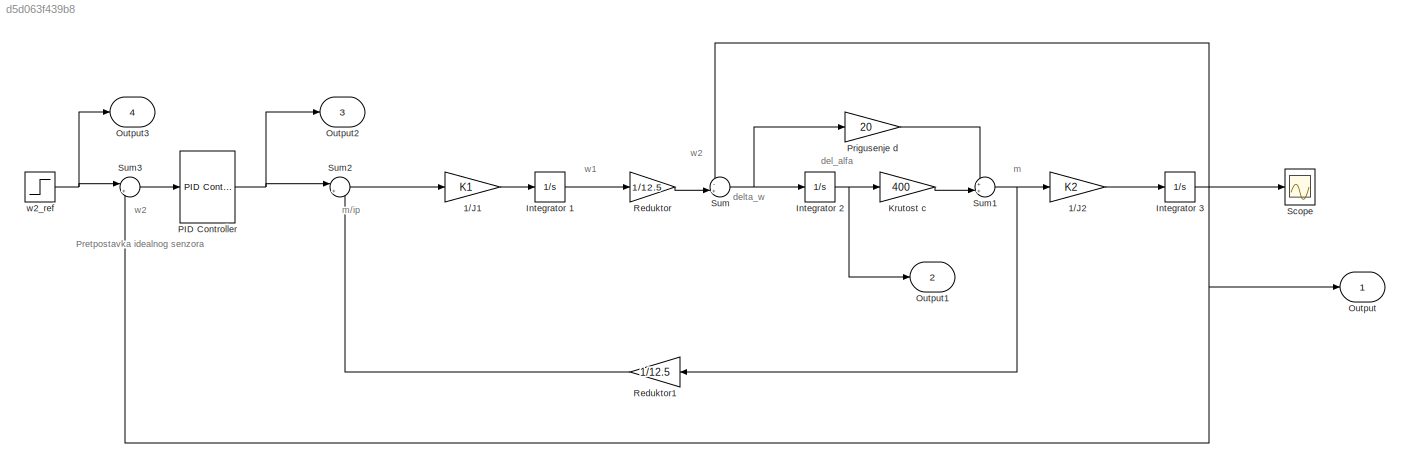
MODEL slx_d5d063f439b8
KIND model
CONFIG AbsTol = auto
CONFIG EnableMultiTasking = off
CONFIG FixedStep = auto
CONFIG MaxStep = auto
CONFIG MinStep = auto
CONFIG RelTol = 1e-3
CONFIG SampleTimeConstraint = Unconstrained
CONFIG SolverName = VariableStepAuto
CONFIG StartTime = 0.0
CONFIG StopTime = 250
WORKSPACE source: mxarray member
WORKSPACE J1 = 0.1
WORKSPACE K1 = 0.1
WORKSPACE K2 = 0.0015625
BLOCK [Gain] 1//J1
  Gain = K1
BLOCK [Gain] 1//J2
  Gain = K2
BLOCK [Integrator] Integrator 1
  Ports = [1, 1]
BLOCK [Integrator] Integrator 2
  LimitOutput = on
  LowerSaturationLimit = -0.2
  Ports = [1, 1]
  UpperSaturationLimit = 0.2
BLOCK [Integrator] Integrator 3
  Ports = [1, 1]
BLOCK [Gain] Krutost c
  Gain = 400
BLOCK [Outport] Output
  NameLocation = right
  SignalName = w2
BLOCK [Outport] Output1
  NameLocation = right
  Port = 2
  SignalName = delta_alfa
BLOCK [Outport] Output2
  NameLocation = right
  Port = 3
  SignalName = m1
BLOCK [Outport] Output3
  NameLocation = right
  Port = 4
  SignalName = w2,ref
BLOCK [Reference] PID Controller  REF=pid_lib/PID Controller
  Ports = [1, 1]
  SourceBlock = pid_lib/PID Controller
  SourceProductBaseCode = SL
  SourceType = PID 1dof
BLOCK [Gain] Prigusenje d
  Gain = 20
  NameLocation = top
BLOCK [Gain] Reduktor
  Gain = 1/12.5
BLOCK [Gain] Reduktor1
  Gain = 1/12.5
BLOCK [Scope] Scope
  Floating = off
  NumInputPorts = 1
  Ports = [1]
  ScopeSpecificationString = Simulink.scopes.TimeScopeBlockCfg('CurrentConfiguration', extmgr.ConfigurationSet(extmgr.Configuration('Core','General UI',true),extmgr.Configuration('Core','Source UI',true),extmgr.Configuration('Sources','WiredSimulink',true),extmgr.Configuration('Visuals','Time Domain',true,'SerializedDisplays',{struct('MinYLimReal','-0.62829','MaxYLimReal','5.65458','YLabelReal','','MinYLimMag','0.00000','MaxY...<+1379ch>
BLOCK [Sum] Sum
  Inputs = -+|
  NameLocation = top
  Ports = [2, 1]
BLOCK [Sum] Sum1
  Inputs = ++|
  NameLocation = top
  Ports = [2, 1]
BLOCK [Sum] Sum2
  Inputs = |+-
  NameLocation = top
  Ports = [2, 1]
BLOCK [Sum] Sum3
  Inputs = |+-
  NameLocation = top
  Ports = [2, 1]
BLOCK [Step] w2_ref
  After = 30
  SampleTime = 1
ANNOTATION (root): Pretpostavka idealnog senzora
ANNOTATION (root): del_alfa
ANNOTATION (root): delta_w
ANNOTATION (root): m
ANNOTATION (root): m/ip
ANNOTATION (root): w1
ANNOTATION (root): w2
LINE 1//J1:1 -> Integrator 1:1
LINE 1//J2:1 -> Integrator 3:1
LINE Integrator 1:1 -> Reduktor:1
NET Integrator 2:1 -> Krutost c:1, Output1:1
NET Integrator 3:1 -> Output:1, Scope:1, Sum3:2, Sum:1
LINE Krutost c:1 -> Sum1:2
NET PID Controller:1 -> Output2:1, Sum2:1
LINE Prigusenje d:1 -> Sum1:1
LINE Reduktor1:1 -> Sum2:2
LINE Reduktor:1 -> Sum:2
NET Sum1:1 -> 1//J2:1, Reduktor1:1
LINE Sum2:1 -> 1//J1:1
LINE Sum3:1 -> PID Controller:1
NET Sum:1 -> Integrator 2:1, Prigusenje d:1
NET w2_ref:1 -> Output3:1, Sum3:1
note: NET lines group one-source signal fan-out (src -> all destinations, sorted); 1:1 wires keep LINE
